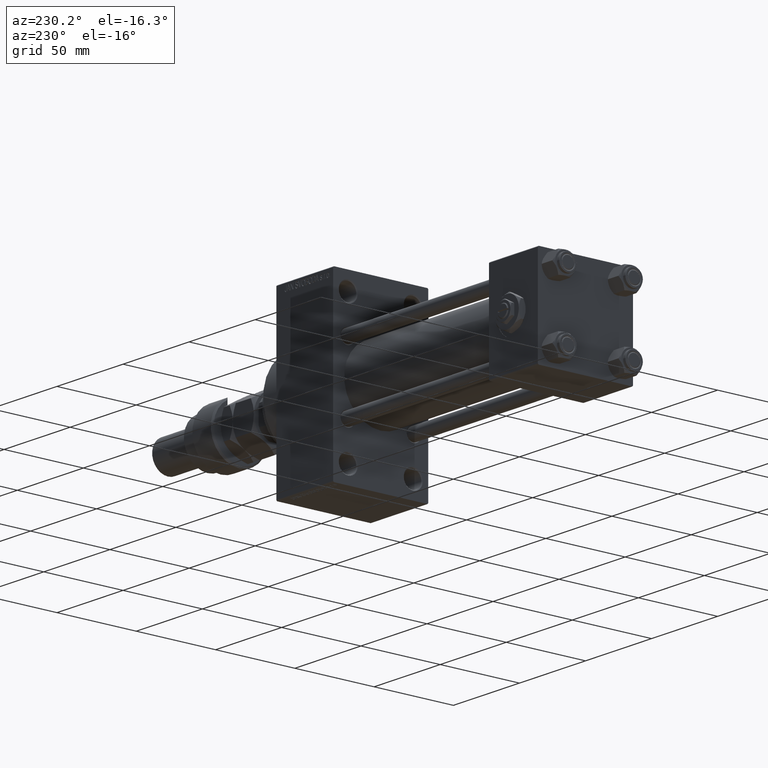
[diagram: clean part render]
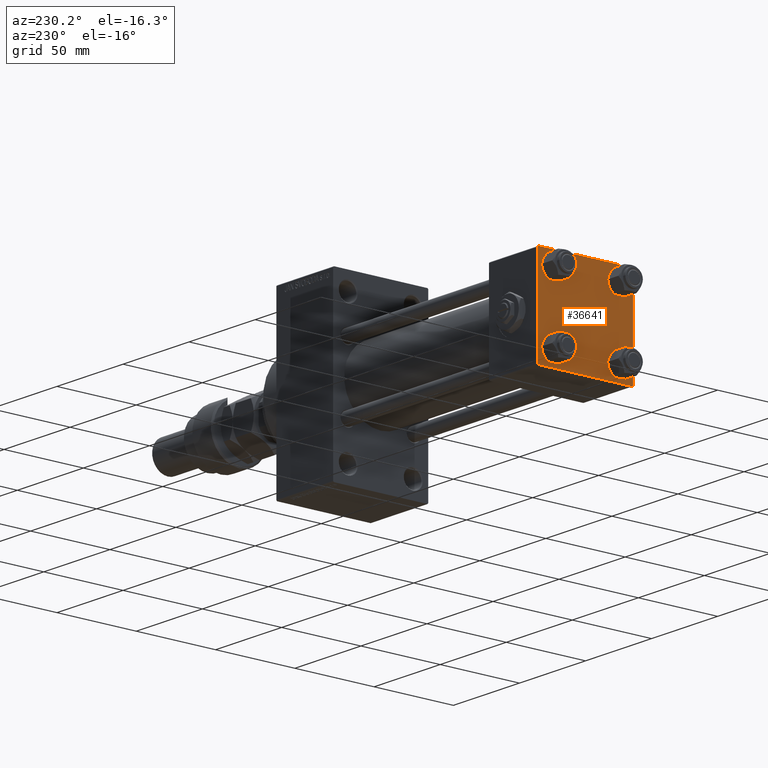
[diagram: same view with one face highlighted and labeled with its STEP entity id]
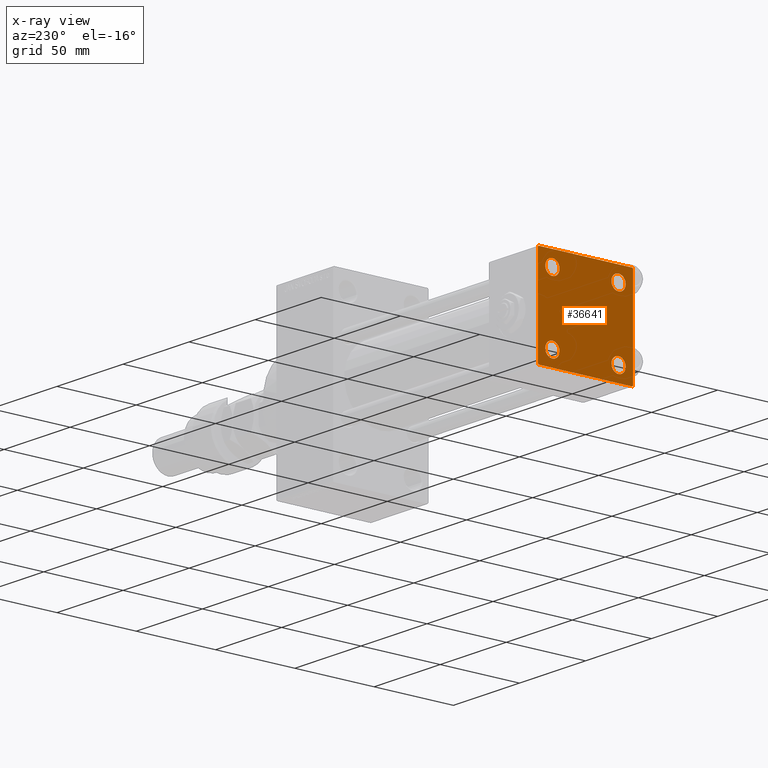
[diagram: x-ray of the same camera — body ghosted, the highlighted face saturated]
A machine part, auxiliary view. The second image highlights one B-rep face of the part: STEP entity #36641.
The next image is the same camera in x-ray: the body ghosted, the highlighted face saturated — about 0% of this face is hidden behind the body in this view.
In plain terms, the highlighted planar face has unit normal (-1, 0, 0).
Its self-contained STEP definition (entity closure, byte-faithful):
#19 = CARTESIAN_POINT ( 'NONE',  ( 0.000000000000000000, -20.84999999999999076, -20.85000000000000497 ) ) ;
#1141 = VERTEX_POINT ( 'NONE', #47214 ) ;
#1192 = EDGE_LOOP ( 'NONE', ( #45485, #26079 ) ) ;
#1334 = CARTESIAN_POINT ( 'NONE',  ( 0.000000000000000000, 29.99999999999999289, 30.00000000000000000 ) ) ;
#1454 = VERTEX_POINT ( 'NONE', #46388 ) ;
#1531 = DIRECTION ( 'NONE',  ( 1.000000000000000000, -0.000000000000000000, 0.000000000000000000 ) ) ;
#1564 = VECTOR ( 'NONE', #2686, 1000.000000000000114 ) ;
#1679 = CARTESIAN_POINT ( 'NONE',  ( -0.000000000000000000, -29.74999999999999645, 29.74999999999999645 ) ) ;
#1694 = AXIS2_PLACEMENT_3D ( 'NONE', #19, #32055, #34951 ) ;
#2045 = CARTESIAN_POINT ( 'NONE',  ( 0.000000000000000000, 0.000000000000000000, 0.000000000000000000 ) ) ;
#2610 = EDGE_CURVE ( 'NONE', #30802, #21932, #9741, .T. ) ;
#2686 = DIRECTION ( 'NONE',  ( -0.000000000000000000, 0.7071067811865474617, 0.7071067811865474617 ) ) ;
#2723 = ORIENTED_EDGE ( 'NONE', *, *, #32634, .T. ) ;
#2735 = VERTEX_POINT ( 'NONE', #49364 ) ;
#2965 = CARTESIAN_POINT ( 'NONE',  ( 0.000000000000000000, 29.74999999999999645, 29.74999999999999645 ) ) ;
#3086 = VECTOR ( 'NONE', #42346, 1000.000000000000000 ) ;
#3477 = LINE ( 'NONE', #2965, #13155 ) ;
#4097 = VERTEX_POINT ( 'NONE', #35949 ) ;
#4230 = ORIENTED_EDGE ( 'NONE', *, *, #14765, .T. ) ;
#4725 = AXIS2_PLACEMENT_3D ( 'NONE', #31888, #41016, #43873 ) ;
#5139 = EDGE_LOOP ( 'NONE', ( #10771, #4230 ) ) ;
#5188 = EDGE_CURVE ( 'NONE', #31000, #16984, #40580, .T. ) ;
#5529 = ORIENTED_EDGE ( 'NONE', *, *, #28072, .T. ) ;
#5700 = CARTESIAN_POINT ( 'NONE',  ( 0.000000000000000000, 20.84999999999999787, 20.85000000000000142 ) ) ;
#6432 = LINE ( 'NONE', #39730, #9535 ) ;
#6954 = AXIS2_PLACEMENT_3D ( 'NONE', #30930, #15031, #46813 ) ;
#7054 = ORIENTED_EDGE ( 'NONE', *, *, #20868, .T. ) ;
#8356 = VECTOR ( 'NONE', #17229, 1000.000000000000000 ) ;
#8429 = DIRECTION ( 'NONE',  ( 0.000000000000000000, 0.000000000000000000, 1.000000000000000000 ) ) ;
#8476 = CARTESIAN_POINT ( 'NONE',  ( 0.000000000000000000, 20.84999999999999787, -20.85000000000000142 ) ) ;
#9337 = CIRCLE ( 'NONE', #1694, 4.500000000000017764 ) ;
#9368 = FACE_OUTER_BOUND ( 'NONE', #36005, .T. ) ;
#9420 = EDGE_CURVE ( 'NONE', #21932, #30802, #9337, .T. ) ;
#9535 = VECTOR ( 'NONE', #19175, 999.9999999999998863 ) ;
#9741 = CIRCLE ( 'NONE', #4725, 4.500000000000017764 ) ;
#10138 = FACE_BOUND ( 'NONE', #1192, .T. ) ;
#10293 = CARTESIAN_POINT ( 'NONE',  ( 0.000000000000000000, -30.00000000000000000, 29.49999999999999289 ) ) ;
#10338 = LINE ( 'NONE', #26489, #25521 ) ;
#10562 = CARTESIAN_POINT ( 'NONE',  ( 0.000000000000000000, -30.00000000000000000, 29.99999999999999289 ) ) ;
#10682 = AXIS2_PLACEMENT_3D ( 'NONE', #5700, #1531, #21587 ) ;
#10765 = CARTESIAN_POINT ( 'NONE',  ( 0.000000000000000000, -29.49999999999998579, 29.99999999999999289 ) ) ;
#10771 = ORIENTED_EDGE ( 'NONE', *, *, #11842, .T. ) ;
#11842 = EDGE_CURVE ( 'NONE', #20167, #4097, #48358, .T. ) ;
#11856 = EDGE_LOOP ( 'NONE', ( #37903, #23482 ) ) ;
#12327 = CARTESIAN_POINT ( 'NONE',  ( 0.000000000000000000, -20.84999999999999076, 20.85000000000000497 ) ) ;
#13155 = VECTOR ( 'NONE', #18865, 1000.000000000000114 ) ;
#13232 = CARTESIAN_POINT ( 'NONE',  ( 0.000000000000000000, -29.50000000000000000, -30.00000000000000711 ) ) ;
#13876 = DIRECTION ( 'NONE',  ( 0.000000000000000000, 0.000000000000000000, 1.000000000000000000 ) ) ;
#14041 = DIRECTION ( 'NONE',  ( -1.000000000000000000, 0.000000000000000000, -0.000000000000000000 ) ) ;
#14765 = EDGE_CURVE ( 'NONE', #4097, #20167, #40995, .T. ) ;
#14949 = VERTEX_POINT ( 'NONE', #13232 ) ;
#15031 = DIRECTION ( 'NONE',  ( 1.000000000000000000, -0.000000000000000000, 0.000000000000000000 ) ) ;
#16134 = DIRECTION ( 'NONE',  ( 0.000000000000000000, 0.000000000000000000, -1.000000000000000000 ) ) ;
#16324 = CARTESIAN_POINT ( 'NONE',  ( 0.000000000000000000, -20.84999999999999076, 16.34999999999998721 ) ) ;
#16984 = VERTEX_POINT ( 'NONE', #20175 ) ;
#17033 = DIRECTION ( 'NONE',  ( 0.000000000000000000, 0.000000000000000000, 1.000000000000000000 ) ) ;
#17087 = CARTESIAN_POINT ( 'NONE',  ( 0.000000000000000000, 29.99999999999999289, -29.50000000000000000 ) ) ;
#17173 = DIRECTION ( 'NONE',  ( -0.000000000000000000, 0.000000000000000000, 1.000000000000000000 ) ) ;
#17229 = DIRECTION ( 'NONE',  ( 0.000000000000000000, -1.000000000000000000, -1.156482317317871725E-16 ) ) ;
#17231 = CARTESIAN_POINT ( 'NONE',  ( 0.000000000000000000, 20.84999999999999787, 16.34999999999998366 ) ) ;
#18126 = LINE ( 'NONE', #10562, #3086 ) ;
#18183 = EDGE_CURVE ( 'NONE', #49890, #2735, #6432, .T. ) ;
#18865 = DIRECTION ( 'NONE',  ( 0.000000000000000000, 0.7071067811865474617, -0.7071067811865474617 ) ) ;
#19175 = DIRECTION ( 'NONE',  ( -0.000000000000000000, -0.7071067811865574537, -0.7071067811865376918 ) ) ;
#20167 = VERTEX_POINT ( 'NONE', #23226 ) ;
#20175 = CARTESIAN_POINT ( 'NONE',  ( 0.000000000000000000, 20.84999999999999787, 25.35000000000001918 ) ) ;
#20294 = VERTEX_POINT ( 'NONE', #24487 ) ;
#20868 = EDGE_CURVE ( 'NONE', #1141, #45956, #30273, .T. ) ;
#21587 = DIRECTION ( 'NONE',  ( 0.000000000000000000, 0.000000000000000000, 1.000000000000000000 ) ) ;
#21932 = VERTEX_POINT ( 'NONE', #48626 ) ;
#23226 = CARTESIAN_POINT ( 'NONE',  ( 0.000000000000000000, 20.84999999999999787, -16.34999999999998366 ) ) ;
#23482 = ORIENTED_EDGE ( 'NONE', *, *, #9420, .T. ) ;
#23573 = ORIENTED_EDGE ( 'NONE', *, *, #43337, .T. ) ;
#24115 = VERTEX_POINT ( 'NONE', #10765 ) ;
#24487 = CARTESIAN_POINT ( 'NONE',  ( 0.000000000000000000, 29.99999999999999289, 29.50000000000000000 ) ) ;
#24563 = DIRECTION ( 'NONE',  ( 1.000000000000000000, -0.000000000000000000, 0.000000000000000000 ) ) ;
#24987 = FACE_BOUND ( 'NONE', #31082, .T. ) ;
#25521 = VECTOR ( 'NONE', #42385, 1000.000000000000114 ) ;
#25891 = CARTESIAN_POINT ( 'NONE',  ( 0.000000000000000000, -20.84999999999999076, -16.34999999999998721 ) ) ;
#26009 = AXIS2_PLACEMENT_3D ( 'NONE', #50617, #42261, #13876 ) ;
#26079 = ORIENTED_EDGE ( 'NONE', *, *, #5188, .T. ) ;
#26399 = AXIS2_PLACEMENT_3D ( 'NONE', #12327, #24563, #8429 ) ;
#26489 = CARTESIAN_POINT ( 'NONE',  ( 0.000000000000000000, -29.75000000000001066, -29.75000000000001066 ) ) ;
#27562 = AXIS2_PLACEMENT_3D ( 'NONE', #8476, #48341, #44157 ) ;
#28072 = EDGE_CURVE ( 'NONE', #45956, #1141, #49699, .T. ) ;
#28154 = ORIENTED_EDGE ( 'NONE', *, *, #48112, .T. ) ;
#28905 = LINE ( 'NONE', #32550, #40558 ) ;
#30273 = CIRCLE ( 'NONE', #6954, 4.500000000000017764 ) ;
#30290 = ORIENTED_EDGE ( 'NONE', *, *, #40040, .T. ) ;
#30802 = VERTEX_POINT ( 'NONE', #25891 ) ;
#30930 = CARTESIAN_POINT ( 'NONE',  ( 0.000000000000000000, -20.84999999999999076, 20.85000000000000497 ) ) ;
#31000 = VERTEX_POINT ( 'NONE', #17231 ) ;
#31082 = EDGE_LOOP ( 'NONE', ( #7054, #5529 ) ) ;
#31888 = CARTESIAN_POINT ( 'NONE',  ( 0.000000000000000000, -20.84999999999999076, -20.85000000000000497 ) ) ;
#31959 = LINE ( 'NONE', #40290, #32154 ) ;
#31982 = EDGE_CURVE ( 'NONE', #20294, #49890, #28905, .T. ) ;
#32055 = DIRECTION ( 'NONE',  ( 1.000000000000000000, -0.000000000000000000, 0.000000000000000000 ) ) ;
#32154 = VECTOR ( 'NONE', #47859, 1000.000000000000000 ) ;
#32454 = VERTEX_POINT ( 'NONE', #50456 ) ;
#32550 = CARTESIAN_POINT ( 'NONE',  ( 0.000000000000000000, 29.99999999999999289, 30.00000000000000000 ) ) ;
#32634 = EDGE_CURVE ( 'NONE', #1454, #20294, #3477, .T. ) ;
#32669 = VERTEX_POINT ( 'NONE', #10293 ) ;
#33897 = LINE ( 'NONE', #1334, #8356 ) ;
#34503 = ORIENTED_EDGE ( 'NONE', *, *, #41809, .F. ) ;
#34516 = AXIS2_PLACEMENT_3D ( 'NONE', #2045, #14041, #17173 ) ;
#34951 = DIRECTION ( 'NONE',  ( 0.000000000000000000, 0.000000000000000000, 1.000000000000000000 ) ) ;
#35949 = CARTESIAN_POINT ( 'NONE',  ( 0.000000000000000000, 20.84999999999999787, -25.35000000000001918 ) ) ;
#36005 = EDGE_LOOP ( 'NONE', ( #48865, #48582, #23573, #30290, #34503, #28154, #37579, #2723 ) ) ;
#36641 = ADVANCED_FACE ( 'NONE', ( #24987, #49242, #37746, #10138, #9368 ), #37239, .T. ) ;
#37239 = PLANE ( 'NONE',  #34516 ) ;
#37579 = ORIENTED_EDGE ( 'NONE', *, *, #40864, .F. ) ;
#37746 = FACE_BOUND ( 'NONE', #5139, .T. ) ;
#37903 = ORIENTED_EDGE ( 'NONE', *, *, #2610, .T. ) ;
#39730 = CARTESIAN_POINT ( 'NONE',  ( 0.000000000000000000, 29.74999999999957723, -29.75000000000040501 ) ) ;
#40040 = EDGE_CURVE ( 'NONE', #14949, #32454, #10338, .T. ) ;
#40290 = CARTESIAN_POINT ( 'NONE',  ( 0.000000000000000000, 29.99999999999999289, -30.00000000000000000 ) ) ;
#40558 = VECTOR ( 'NONE', #16134, 1000.000000000000000 ) ;
#40580 = CIRCLE ( 'NONE', #43885, 4.500000000000017764 ) ;
#40609 = CIRCLE ( 'NONE', #10682, 4.500000000000017764 ) ;
#40864 = EDGE_CURVE ( 'NONE', #1454, #24115, #33897, .T. ) ;
#40995 = CIRCLE ( 'NONE', #26009, 4.500000000000017764 ) ;
#41016 = DIRECTION ( 'NONE',  ( 1.000000000000000000, -0.000000000000000000, 0.000000000000000000 ) ) ;
#41547 = LINE ( 'NONE', #1679, #1564 ) ;
#41809 = EDGE_CURVE ( 'NONE', #32669, #32454, #18126, .T. ) ;
#42261 = DIRECTION ( 'NONE',  ( 1.000000000000000000, -0.000000000000000000, 0.000000000000000000 ) ) ;
#42346 = DIRECTION ( 'NONE',  ( 0.000000000000000000, 0.000000000000000000, -1.000000000000000000 ) ) ;
#42385 = DIRECTION ( 'NONE',  ( 0.000000000000000000, -0.7071067811865474617, 0.7071067811865474617 ) ) ;
#43337 = EDGE_CURVE ( 'NONE', #2735, #14949, #31959, .T. ) ;
#43598 = DIRECTION ( 'NONE',  ( 1.000000000000000000, -0.000000000000000000, 0.000000000000000000 ) ) ;
#43873 = DIRECTION ( 'NONE',  ( 0.000000000000000000, 0.000000000000000000, 1.000000000000000000 ) ) ;
#43885 = AXIS2_PLACEMENT_3D ( 'NONE', #44378, #43598, #17033 ) ;
#44157 = DIRECTION ( 'NONE',  ( 0.000000000000000000, 0.000000000000000000, 1.000000000000000000 ) ) ;
#44378 = CARTESIAN_POINT ( 'NONE',  ( 0.000000000000000000, 20.84999999999999787, 20.85000000000000142 ) ) ;
#45485 = ORIENTED_EDGE ( 'NONE', *, *, #46662, .T. ) ;
#45956 = VERTEX_POINT ( 'NONE', #16324 ) ;
#46388 = CARTESIAN_POINT ( 'NONE',  ( 0.000000000000000000, 29.49999999999999289, 30.00000000000000000 ) ) ;
#46662 = EDGE_CURVE ( 'NONE', #16984, #31000, #40609, .T. ) ;
#46813 = DIRECTION ( 'NONE',  ( 0.000000000000000000, 0.000000000000000000, 1.000000000000000000 ) ) ;
#47214 = CARTESIAN_POINT ( 'NONE',  ( 0.000000000000000000, -20.84999999999999076, 25.35000000000002274 ) ) ;
#47859 = DIRECTION ( 'NONE',  ( 0.000000000000000000, -1.000000000000000000, -1.156482317317871725E-16 ) ) ;
#48112 = EDGE_CURVE ( 'NONE', #32669, #24115, #41547, .T. ) ;
#48341 = DIRECTION ( 'NONE',  ( 1.000000000000000000, -0.000000000000000000, 0.000000000000000000 ) ) ;
#48358 = CIRCLE ( 'NONE', #27562, 4.500000000000017764 ) ;
#48582 = ORIENTED_EDGE ( 'NONE', *, *, #18183, .T. ) ;
#48626 = CARTESIAN_POINT ( 'NONE',  ( 0.000000000000000000, -20.84999999999999076, -25.35000000000002274 ) ) ;
#48865 = ORIENTED_EDGE ( 'NONE', *, *, #31982, .T. ) ;
#49242 = FACE_BOUND ( 'NONE', #11856, .T. ) ;
#49364 = CARTESIAN_POINT ( 'NONE',  ( 0.000000000000000000, 29.49999999999997868, -30.00000000000000000 ) ) ;
#49699 = CIRCLE ( 'NONE', #26399, 4.500000000000017764 ) ;
#49890 = VERTEX_POINT ( 'NONE', #17087 ) ;
#50456 = CARTESIAN_POINT ( 'NONE',  ( 0.000000000000000000, -30.00000000000000000, -29.50000000000001776 ) ) ;
#50617 = CARTESIAN_POINT ( 'NONE',  ( 0.000000000000000000, 20.84999999999999787, -20.85000000000000142 ) ) ;